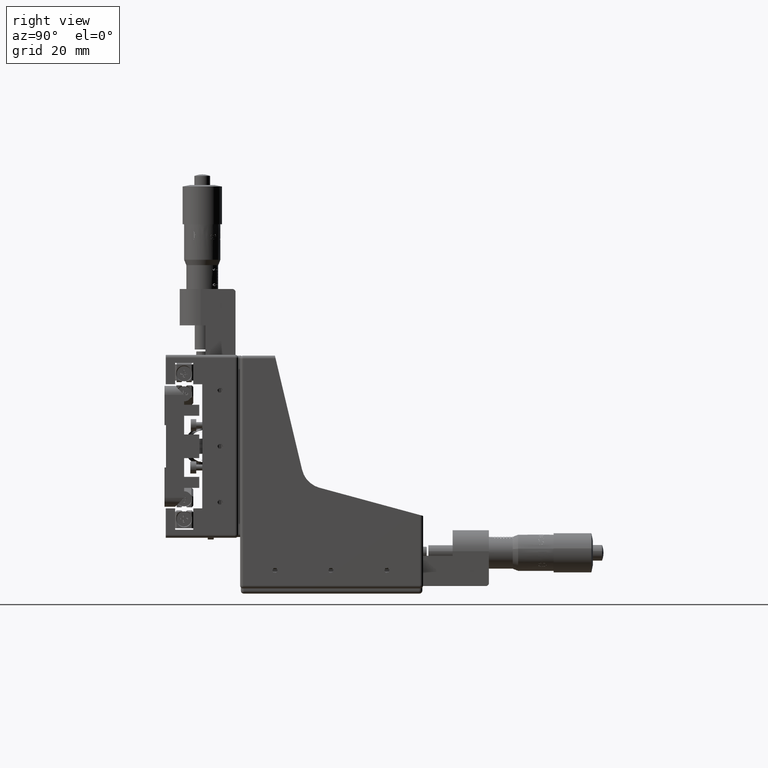
[diagram: clean part render]
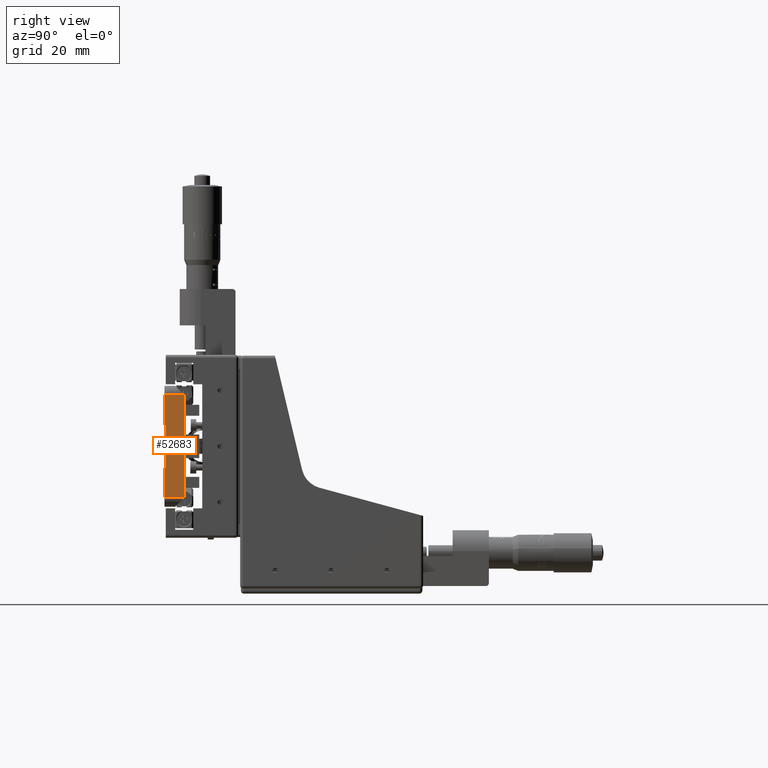
[diagram: same view with one face highlighted and labeled with its STEP entity id]
A machine part, right view. The second image highlights one B-rep face of the part: STEP entity #52683.
In plain terms, the highlighted planar face has unit normal (-1, 0, 0).
Its self-contained STEP definition (entity closure, byte-faithful):
#824 = CARTESIAN_POINT ( 'NONE',  ( 53.31603255245602200, -2.381792010563720500, -12.49247405631721900 ) ) ;
#1603 = DIRECTION ( 'NONE',  ( 1.031748184493178700E-032, 1.239088197126311000E-016, 1.000000000000000000 ) ) ;
#4161 = CARTESIAN_POINT ( 'NONE',  ( 53.31603255245602200, -2.381792010563720500, 21.50752594368278300 ) ) ;
#4949 = PLANE ( 'NONE',  #26293 ) ;
#6000 = LINE ( 'NONE', #45181, #41774 ) ;
#7597 = CARTESIAN_POINT ( 'NONE',  ( 53.31603255245602200, -8.881792010563723100, -12.49247405631721900 ) ) ;
#8461 = EDGE_CURVE ( 'NONE', #32894, #10104, #12368, .T. ) ;
#8942 = EDGE_LOOP ( 'NONE', ( #63501, #33029, #30048, #59534, #47835, #58919, #29259, #74597 ) ) ;
#9015 = LINE ( 'NONE', #44395, #63776 ) ;
#9598 = EDGE_CURVE ( 'NONE', #27685, #11407, #39878, .T. ) ;
#10104 = VERTEX_POINT ( 'NONE', #50649 ) ;
#10216 = CARTESIAN_POINT ( 'NONE',  ( 53.31603255245602200, -8.881792010563723100, 11.50752594368266700 ) ) ;
#11007 = VECTOR ( 'NONE', #23219, 1000.000000000000000 ) ;
#11407 = VERTEX_POINT ( 'NONE', #824 ) ;
#12287 = CARTESIAN_POINT ( 'NONE',  ( 53.31603255245602200, -8.881792010563723100, 21.50752594368278300 ) ) ;
#12368 = LINE ( 'NONE', #12287, #67098 ) ;
#13127 = VECTOR ( 'NONE', #49909, 1000.000000000000000 ) ;
#16038 = CARTESIAN_POINT ( 'NONE',  ( 53.31603255245602200, -8.881792010563723100, -15.49247405631721700 ) ) ;
#16387 = CARTESIAN_POINT ( 'NONE',  ( 53.31603255245602200, -8.381792010563721400, 11.50752594368267100 ) ) ;
#16874 = CARTESIAN_POINT ( 'NONE',  ( 53.31603255245602200, -8.881792010563723100, -2.492474056316991600 ) ) ;
#17435 = DIRECTION ( 'NONE',  ( 0.0000000000000000000, 0.0000000000000000000, 1.000000000000000000 ) ) ;
#22567 = VECTOR ( 'NONE', #17435, 1000.000000000000000 ) ;
#23219 = DIRECTION ( 'NONE',  ( 0.0000000000000000000, 0.0000000000000000000, 1.000000000000000000 ) ) ;
#26293 = AXIS2_PLACEMENT_3D ( 'NONE', #33656, #83489, #40831 ) ;
#27685 = VERTEX_POINT ( 'NONE', #7597 ) ;
#28448 = EDGE_CURVE ( 'NONE', #36257, #79852, #80102, .T. ) ;
#29259 = ORIENTED_EDGE ( 'NONE', *, *, #82914, .F. ) ;
#29478 = VECTOR ( 'NONE', #30397, 1000.000000000000000 ) ;
#30048 = ORIENTED_EDGE ( 'NONE', *, *, #49947, .F. ) ;
#30397 = DIRECTION ( 'NONE',  ( 1.111113429454173600E-031, 1.334402673828312600E-015, -1.000000000000000000 ) ) ;
#32894 = VERTEX_POINT ( 'NONE', #4161 ) ;
#33029 = ORIENTED_EDGE ( 'NONE', *, *, #9598, .T. ) ;
#33656 = CARTESIAN_POINT ( 'NONE',  ( 53.31603255245602200, -8.881792010563723100, -2.492474056317105300 ) ) ;
#33871 = CARTESIAN_POINT ( 'NONE',  ( 53.31603255245602200, -5.381792010563719600, -12.49247405631721900 ) ) ;
#35946 = CARTESIAN_POINT ( 'NONE',  ( 53.31603255245602200, -8.881792010563723100, 11.50752594368266700 ) ) ;
#36257 = VERTEX_POINT ( 'NONE', #16387 ) ;
#37973 = DIRECTION ( 'NONE',  ( 8.326672684688671600E-017, 1.000000000000000000, -2.220446049250310600E-013 ) ) ;
#39878 = LINE ( 'NONE', #33871, #58881 ) ;
#40831 = DIRECTION ( 'NONE',  ( 0.0000000000000000000, 0.0000000000000000000, 1.000000000000000000 ) ) ;
#41113 = EDGE_CURVE ( 'NONE', #75437, #61644, #6000, .T. ) ;
#41617 = LINE ( 'NONE', #10216, #22567 ) ;
#41774 = VECTOR ( 'NONE', #37973, 1000.000000000000000 ) ;
#43082 = EDGE_CURVE ( 'NONE', #27685, #75437, #44563, .T. ) ;
#44395 = CARTESIAN_POINT ( 'NONE',  ( 53.31603255245602200, -8.381792010563723100, -2.492474056317102600 ) ) ;
#44563 = LINE ( 'NONE', #16038, #11007 ) ;
#45116 = CARTESIAN_POINT ( 'NONE',  ( 53.31603255245602200, -2.381792010563720500, -12.49247405631721900 ) ) ;
#45181 = CARTESIAN_POINT ( 'NONE',  ( 53.31603255245602200, -8.381792010563723100, -2.492474056317102600 ) ) ;
#47835 = ORIENTED_EDGE ( 'NONE', *, *, #91077, .F. ) ;
#48244 = DIRECTION ( 'NONE',  ( 8.326672684688671600E-017, 1.000000000000000000, -0.0000000000000000000 ) ) ;
#49909 = DIRECTION ( 'NONE',  ( -8.326672684688671600E-017, -1.000000000000000000, -8.673617379883996000E-015 ) ) ;
#49947 = EDGE_CURVE ( 'NONE', #32894, #11407, #84157, .T. ) ;
#50649 = CARTESIAN_POINT ( 'NONE',  ( 53.31603255245602200, -8.881792010563723100, 21.50752594368278300 ) ) ;
#52683 = ADVANCED_FACE ( 'NONE', ( #89884 ), #4949, .F. ) ;
#57623 = CARTESIAN_POINT ( 'NONE',  ( 53.31603255245602200, -8.381792010563723100, -2.492474056317102600 ) ) ;
#58881 = VECTOR ( 'NONE', #48244, 1000.000000000000000 ) ;
#58919 = ORIENTED_EDGE ( 'NONE', *, *, #28448, .F. ) ;
#59534 = ORIENTED_EDGE ( 'NONE', *, *, #8461, .T. ) ;
#61644 = VERTEX_POINT ( 'NONE', #57623 ) ;
#62573 = DIRECTION ( 'NONE',  ( -8.326672684688671600E-017, -1.000000000000000000, -0.0000000000000000000 ) ) ;
#63501 = ORIENTED_EDGE ( 'NONE', *, *, #43082, .F. ) ;
#63776 = VECTOR ( 'NONE', #1603, 1000.000000000000000 ) ;
#67098 = VECTOR ( 'NONE', #62573, 1000.000000000000000 ) ;
#74597 = ORIENTED_EDGE ( 'NONE', *, *, #41113, .F. ) ;
#75437 = VERTEX_POINT ( 'NONE', #16874 ) ;
#79852 = VERTEX_POINT ( 'NONE', #35946 ) ;
#80102 = LINE ( 'NONE', #92496, #13127 ) ;
#82914 = EDGE_CURVE ( 'NONE', #61644, #36257, #9015, .T. ) ;
#83489 = DIRECTION ( 'NONE',  ( -1.000000000000000000, 1.110223024625156500E-016, 0.0000000000000000000 ) ) ;
#84157 = LINE ( 'NONE', #45116, #29478 ) ;
#89884 = FACE_OUTER_BOUND ( 'NONE', #8942, .T. ) ;
#91077 = EDGE_CURVE ( 'NONE', #79852, #10104, #41617, .T. ) ;
#92496 = CARTESIAN_POINT ( 'NONE',  ( 53.31603255245602200, -8.381792010563721400, 11.50752594368267100 ) ) ;